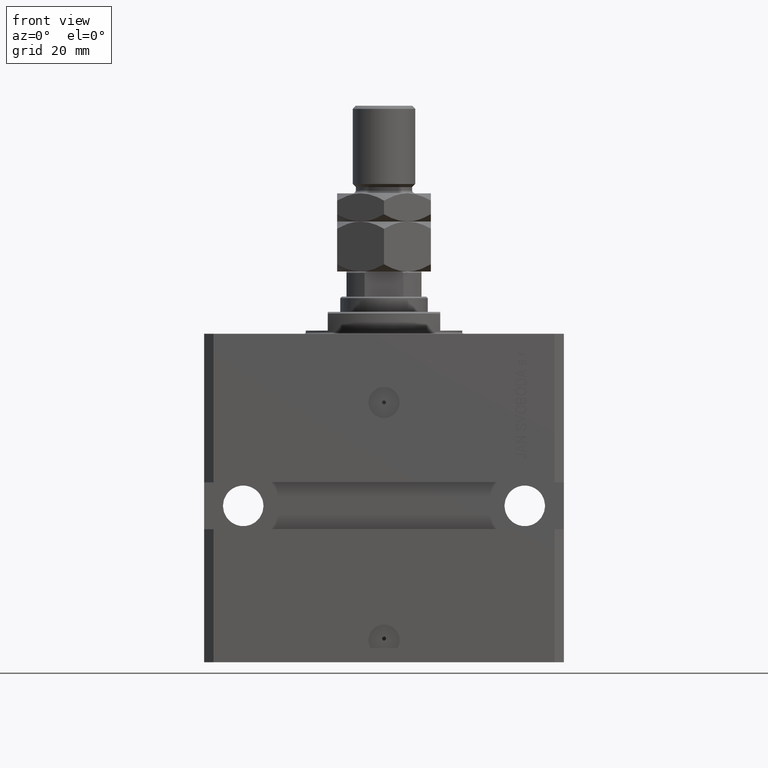
[diagram: clean part render]
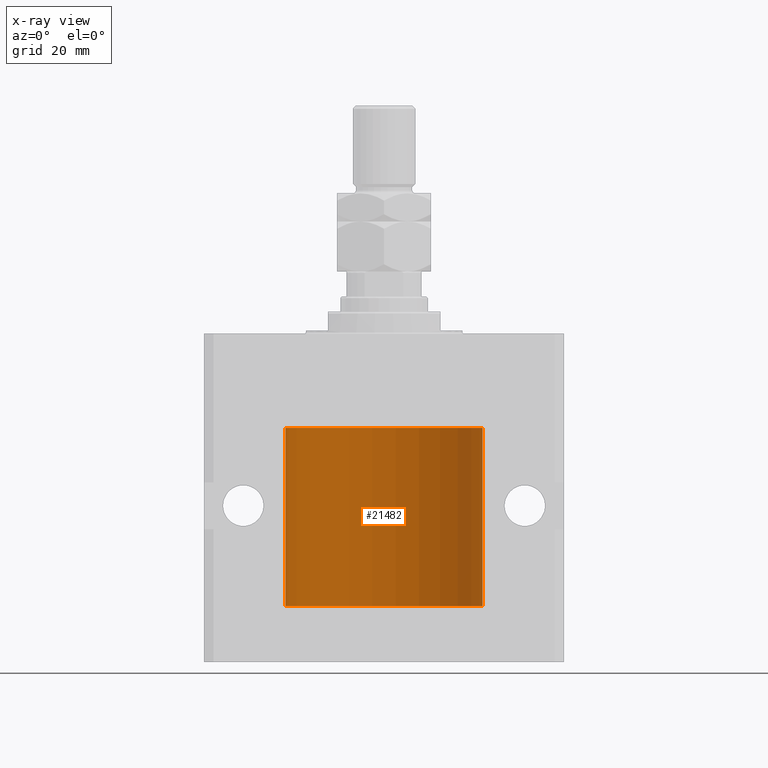
[diagram: x-ray — body ghosted, one internal face saturated and labeled with its STEP entity id]
A machine part, front view, then the same camera in x-ray: the body is ghosted and one INTERNAL B-rep face — a face not visible from any outside direction — is saturated and labeled: STEP entity #21482.
In plain terms, the highlighted cylindrical surface (partial cylindrical patch) has radius 31.5 mm, axis along (0, 0, 1).
Its self-contained STEP definition (entity closure, byte-faithful):
#1423 = VERTEX_POINT ( 'NONE', #33072 ) ;
#1460 = CARTESIAN_POINT ( 'NONE',  ( 0.000000000000000000, 0.000000000000000000, -87.10000000000000853 ) ) ;
#2149 = LINE ( 'NONE', #17658, #12927 ) ;
#2384 = CARTESIAN_POINT ( 'NONE',  ( 31.50000000000000000, 0.000000000000000000, -87.10000000000000853 ) ) ;
#3483 = EDGE_LOOP ( 'NONE', ( #6639, #32638, #39256, #5522, #22986, #16659 ) ) ;
#4774 = DIRECTION ( 'NONE',  ( 1.000000000000000000, 0.000000000000000000, 0.000000000000000000 ) ) ;
#4937 = CARTESIAN_POINT ( 'NONE',  ( -31.49380014137585704, 0.6249421240571523262, -83.83671479190289233 ) ) ;
#5435 = CARTESIAN_POINT ( 'NONE',  ( -31.49999999999998579, 0.08259258789479478891, -83.37499999999998579 ) ) ;
#5522 = ORIENTED_EDGE ( 'NONE', *, *, #45364, .T. ) ;
#6639 = ORIENTED_EDGE ( 'NONE', *, *, #27181, .F. ) ;
#7091 = DIRECTION ( 'NONE',  ( 0.000000000000000000, 0.000000000000000000, 1.000000000000000000 ) ) ;
#7578 = DIRECTION ( 'NONE',  ( -0.000000000000000000, -0.000000000000000000, 1.000000000000000000 ) ) ;
#8242 = EDGE_CURVE ( 'NONE', #30597, #25521, #21865, .T. ) ;
#8385 = VERTEX_POINT ( 'NONE', #2384 ) ;
#8734 = CYLINDRICAL_SURFACE ( 'NONE', #42826, 31.50000000000000000 ) ;
#10810 = VECTOR ( 'NONE', #7578, 1000.000000000000000 ) ;
#11139 = LINE ( 'NONE', #18775, #10810 ) ;
#11828 = DIRECTION ( 'NONE',  ( 1.000000000000000000, 0.000000000000000000, 0.000000000000000000 ) ) ;
#12927 = VECTOR ( 'NONE', #28866, 1000.000000000000000 ) ;
#15898 = FACE_OUTER_BOUND ( 'NONE', #3483, .T. ) ;
#16387 = CIRCLE ( 'NONE', #44784, 31.50000000000000000 ) ;
#16659 = ORIENTED_EDGE ( 'NONE', *, *, #8242, .T. ) ;
#16755 = VERTEX_POINT ( 'NONE', #48830 ) ;
#17135 = CARTESIAN_POINT ( 'NONE',  ( -31.49526081842315151, 0.5587119163470756211, -84.32511513093052713 ) ) ;
#17658 = CARTESIAN_POINT ( 'NONE',  ( -31.50000000000000000, 3.857637417314161900E-15, -87.10000000000000853 ) ) ;
#18586 = CARTESIAN_POINT ( 'NONE',  ( -31.50000000000000000, 7.975607743522037396E-16, -83.37500000000000000 ) ) ;
#18775 = CARTESIAN_POINT ( 'NONE',  ( -31.50000000000000000, 3.857637417314161900E-15, -87.10000000000000853 ) ) ;
#19150 = DIRECTION ( 'NONE',  ( -0.000000000000000000, -0.000000000000000000, 1.000000000000000000 ) ) ;
#20469 = CARTESIAN_POINT ( 'NONE',  ( -31.49999999999998579, 0.1631661150515253123, -84.62499999999982947 ) ) ;
#20964 = VECTOR ( 'NONE', #19150, 1000.000000000000000 ) ;
#21482 = ADVANCED_FACE ( 'NONE', ( #15898 ), #8734, .F. ) ;
#21639 = VERTEX_POINT ( 'NONE', #36960 ) ;
#21865 = B_SPLINE_CURVE_WITH_KNOTS ( 'NONE', 3,
 ( #35721, #5435, #36725, #47396, #48146, #28103, #4937, #36467, #17135, #36220, #20469, #28599 ),
 .UNSPECIFIED., .F., .F.,
 ( 4, 2, 2, 2, 2, 4 ),
 ( 3.075703443732137786E-18, 0.0002442604562134845204, 0.0004885209124269658965, 0.0009770418248538992670, 0.001465562737280832637, 0.001954083649707766008 ),
 .UNSPECIFIED. ) ;
#22718 = CARTESIAN_POINT ( 'NONE',  ( 31.50000000000000000, 0.000000000000000000, -87.10000000000000853 ) ) ;
#22945 = CARTESIAN_POINT ( 'NONE',  ( -31.50000000000006395, 3.480981129463732167E-13, -84.62500000000324007 ) ) ;
#22986 = ORIENTED_EDGE ( 'NONE', *, *, #38600, .F. ) ;
#23795 = DIRECTION ( 'NONE',  ( -0.000000000000000000, -0.000000000000000000, 1.000000000000000000 ) ) ;
#24236 = EDGE_CURVE ( 'NONE', #8385, #21639, #34663, .T. ) ;
#25521 = VERTEX_POINT ( 'NONE', #22945 ) ;
#27181 = EDGE_CURVE ( 'NONE', #16755, #25521, #2149, .T. ) ;
#28103 = CARTESIAN_POINT ( 'NONE',  ( -31.49528028230855270, 0.5573323339569611345, -83.67349008819321909 ) ) ;
#28599 = CARTESIAN_POINT ( 'NONE',  ( -31.50000000000006395, 3.480981129463732167E-13, -84.62500000000324007 ) ) ;
#28866 = DIRECTION ( 'NONE',  ( -0.000000000000000000, -0.000000000000000000, 1.000000000000000000 ) ) ;
#30597 = VERTEX_POINT ( 'NONE', #18586 ) ;
#32638 = ORIENTED_EDGE ( 'NONE', *, *, #32908, .F. ) ;
#32908 = EDGE_CURVE ( 'NONE', #8385, #16755, #16387, .T. ) ;
#33072 = CARTESIAN_POINT ( 'NONE',  ( -31.50000000000000000, 3.857637417314161900E-15, -30.10000000000000142 ) ) ;
#34334 = DIRECTION ( 'NONE',  ( 1.000000000000000000, 0.000000000000000000, 0.000000000000000000 ) ) ;
#34663 = LINE ( 'NONE', #22718, #20964 ) ;
#34834 = CARTESIAN_POINT ( 'NONE',  ( 0.000000000000000000, 0.000000000000000000, -30.10000000000000142 ) ) ;
#35721 = CARTESIAN_POINT ( 'NONE',  ( -31.50000000000000000, 7.975607743522037396E-16, -83.37500000000000000 ) ) ;
#36220 = CARTESIAN_POINT ( 'NONE',  ( -31.49853548231893541, 0.3253851488062164399, -84.55855470525685291 ) ) ;
#36467 = CARTESIAN_POINT ( 'NONE',  ( -31.49379784581975272, 0.6250577973157672718, -84.16284184848845484 ) ) ;
#36725 = CARTESIAN_POINT ( 'NONE',  ( -31.49966591610109390, 0.1636376958180636443, -83.39126189995840832 ) ) ;
#36803 = DIRECTION ( 'NONE',  ( 0.000000000000000000, 0.000000000000000000, 1.000000000000000000 ) ) ;
#36960 = CARTESIAN_POINT ( 'NONE',  ( 31.50000000000000000, 0.000000000000000000, -30.10000000000000142 ) ) ;
#37598 = CIRCLE ( 'NONE', #48941, 31.50000000000000000 ) ;
#38600 = EDGE_CURVE ( 'NONE', #30597, #1423, #11139, .T. ) ;
#39256 = ORIENTED_EDGE ( 'NONE', *, *, #24236, .T. ) ;
#42826 = AXIS2_PLACEMENT_3D ( 'NONE', #46652, #23795, #11828 ) ;
#44784 = AXIS2_PLACEMENT_3D ( 'NONE', #1460, #36803, #4774 ) ;
#45364 = EDGE_CURVE ( 'NONE', #21639, #1423, #37598, .T. ) ;
#46652 = CARTESIAN_POINT ( 'NONE',  ( 0.000000000000000000, 0.000000000000000000, -87.10000000000000853 ) ) ;
#47396 = CARTESIAN_POINT ( 'NONE',  ( -31.49851563474691218, 0.3150284575672411824, -83.45401791159622462 ) ) ;
#48146 = CARTESIAN_POINT ( 'NONE',  ( -31.49770767031179730, 0.3843648832734379295, -83.50046081259654329 ) ) ;
#48830 = CARTESIAN_POINT ( 'NONE',  ( -31.50000000000000000, 3.857637417314161900E-15, -87.10000000000000853 ) ) ;
#48941 = AXIS2_PLACEMENT_3D ( 'NONE', #34834, #7091, #34334 ) ;